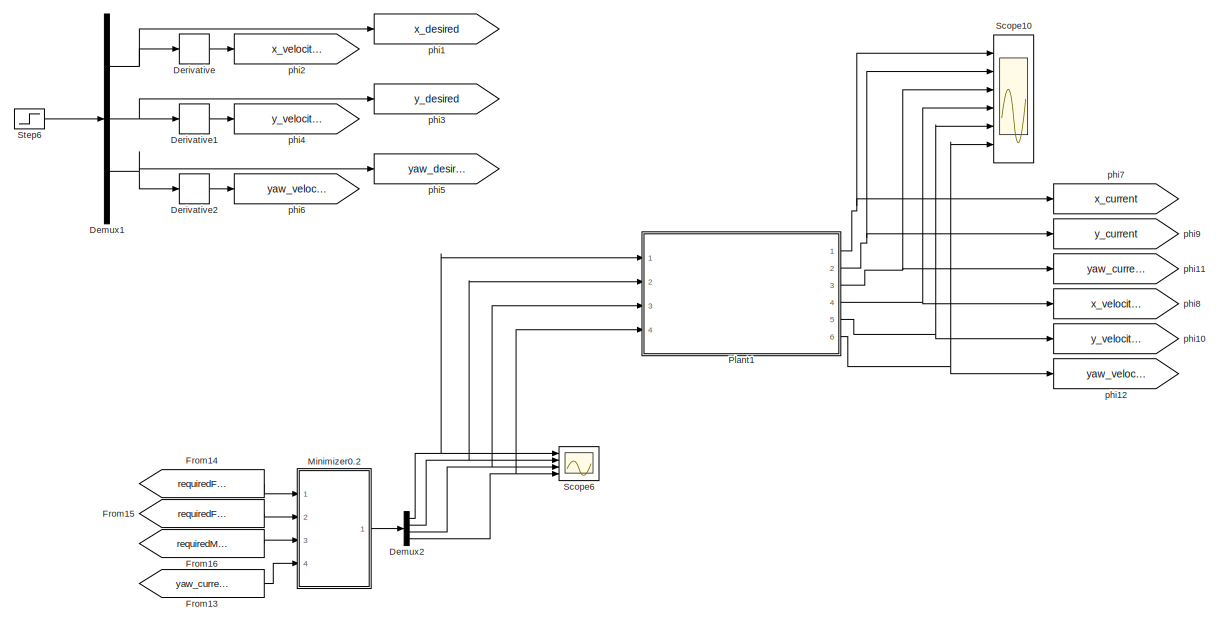
[diagram: root canvas - part 1/2, left side, full height]
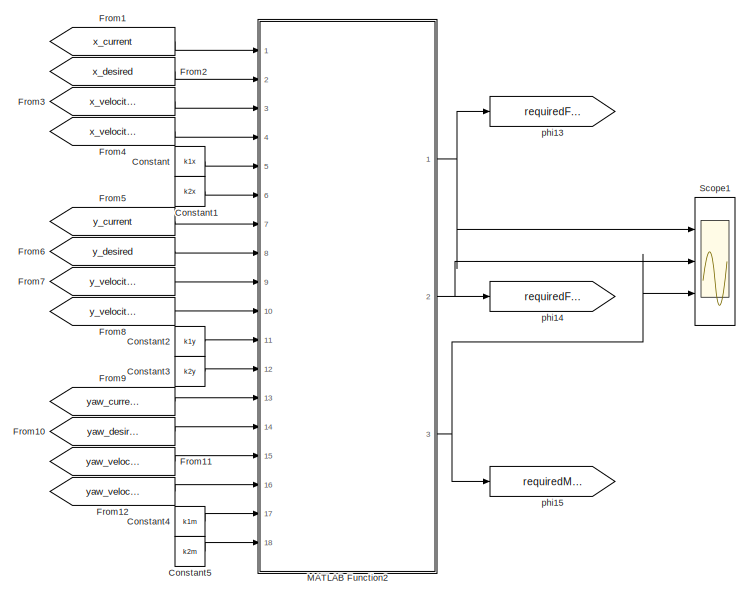
[diagram: root canvas - part 2/2, right side, full height]
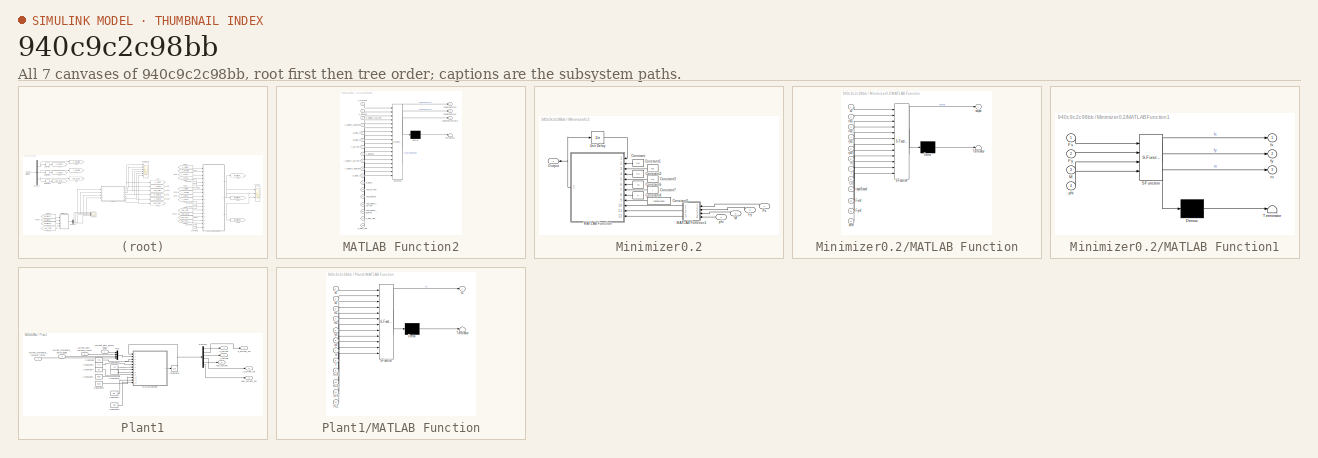
[diagram: thumbnail index - all 7 canvases of the model, root first then tree order]
MODEL slx_940c9c2c98bb
KIND model
BLOCK [Constant] Constant
  Value = k1x
BLOCK [Constant] Constant1
  Value = k2x
BLOCK [Constant] Constant2
  Value = k1y
BLOCK [Constant] Constant3
  Value = k2y
BLOCK [Constant] Constant4
  Value = k1m
BLOCK [Constant] Constant5
  Value = k2m
BLOCK [Demux] Demux1
  DisplayOption = bar
  Outputs = 3
  Ports = [1, 3]
BLOCK [Demux] Demux2
  DisplayOption = bar
  Ports = [1, 4]
BLOCK [Derivative] Derivative
BLOCK [Derivative] Derivative1
BLOCK [Derivative] Derivative2
BLOCK [From] From1
  GotoTag = x_current
BLOCK [From] From10
  GotoTag = yaw_desired
BLOCK [From] From11
  GotoTag = yaw_velocity_current
BLOCK [From] From12
  GotoTag = yaw_velocity_desired
BLOCK [From] From13
  GotoTag = yaw_current
BLOCK [From] From14
  GotoTag = requiredForceX
BLOCK [From] From15
  GotoTag = requiredForceY
BLOCK [From] From16
  GotoTag = requiredMomentZ
BLOCK [From] From2
  GotoTag = x_desired
BLOCK [From] From3
  GotoTag = x_velocity_current
BLOCK [From] From4
  GotoTag = x_velocity_desired
BLOCK [From] From5
  GotoTag = y_current
BLOCK [From] From6
  GotoTag = y_desired
BLOCK [From] From7
  GotoTag = y_velocity_current
BLOCK [From] From8
  GotoTag = y_velocity_desired
BLOCK [From] From9
  GotoTag = yaw_current
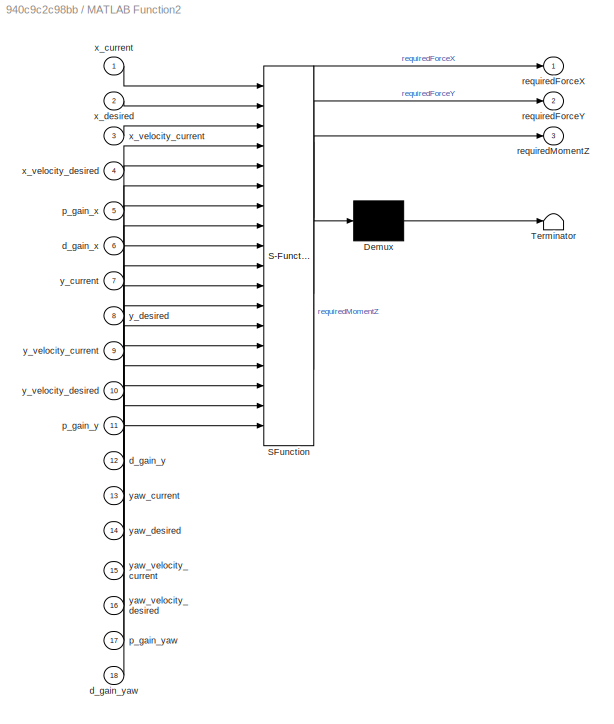
BLOCK [SubSystem] MATLAB Function2
  ErrorFcn = Stateflow.Translate.translate
  PermitHierarchicalResolution = ExplicitOnly
  Ports = [18, 3]
  RequestExecContextInheritance = off
  SFBlockType = MATLAB Function
  TreatAsAtomicUnit = on
BLOCK [Demux] MATLAB Function2/ Demux 
  Outputs = 1
  Ports = [1, 1]
BLOCK [S-Function] MATLAB Function2/ SFunction 
  EnableBusSupport = on
  FunctionName = sf_sfun
  PortCounts = [18 4]
  Ports = [18, 4]
  Tag = Stateflow S-Function systemTest 1
BLOCK [Terminator] MATLAB Function2/ Terminator 
BLOCK [Inport] MATLAB Function2/d_gain_x
  IconDisplay = Port number
  Port = 6
BLOCK [Inport] MATLAB Function2/d_gain_y
  IconDisplay = Port number
  Port = 12
BLOCK [Inport] MATLAB Function2/d_gain_yaw
  IconDisplay = Port number
  Port = 18
BLOCK [Inport] MATLAB Function2/p_gain_x
  IconDisplay = Port number
  Port = 5
BLOCK [Inport] MATLAB Function2/p_gain_y
  IconDisplay = Port number
  Port = 11
BLOCK [Inport] MATLAB Function2/p_gain_yaw
  IconDisplay = Port number
  Port = 17
BLOCK [Outport] MATLAB Function2/requiredForceX
  IconDisplay = Port number
BLOCK [Outport] MATLAB Function2/requiredForceY
  IconDisplay = Port number
  Port = 2
BLOCK [Outport] MATLAB Function2/requiredMomentZ
  IconDisplay = Port number
  Port = 3
BLOCK [Inport] MATLAB Function2/x_current
  IconDisplay = Port number
BLOCK [Inport] MATLAB Function2/x_desired
  IconDisplay = Port number
  Port = 2
BLOCK [Inport] MATLAB Function2/x_velocity_current
  IconDisplay = Port number
  Port = 3
BLOCK [Inport] MATLAB Function2/x_velocity_desired
  IconDisplay = Port number
  Port = 4
BLOCK [Inport] MATLAB Function2/y_current
  IconDisplay = Port number
  Port = 7
BLOCK [Inport] MATLAB Function2/y_desired
  IconDisplay = Port number
  Port = 8
BLOCK [Inport] MATLAB Function2/y_velocity_current
  IconDisplay = Port number
  Port = 9
BLOCK [Inport] MATLAB Function2/y_velocity_desired
  IconDisplay = Port number
  Port = 10
BLOCK [Inport] MATLAB Function2/yaw_current
  IconDisplay = Port number
  Port = 13
BLOCK [Inport] MATLAB Function2/yaw_desired
  IconDisplay = Port number
  Port = 14
BLOCK [Inport] MATLAB Function2/yaw_velocity_current
  IconDisplay = Port number
  Port = 15
BLOCK [Inport] MATLAB Function2/yaw_velocity_desired
  IconDisplay = Port number
  Port = 16
BLOCK [SubSystem] Minimizer0.2
  Ports = [4, 1]
  RequestExecContextInheritance = off
BLOCK [Constant] Minimizer0.2/Constant
  Value = rx1
BLOCK [Constant] Minimizer0.2/Constant1
  Value = rx2
BLOCK [Constant] Minimizer0.2/Constant2
  Value = ry1
BLOCK [Constant] Minimizer0.2/Constant3
  Value = ry2
BLOCK [Constant] Minimizer0.2/Constant4
  Value = K
BLOCK [Constant] Minimizer0.2/Constant5
  Value = inputBound
BLOCK [Constant] Minimizer0.2/Constant6
  Value = m
BLOCK [Constant] Minimizer0.2/Constant7
  Value = I
BLOCK [Inport] Minimizer0.2/Fx
  IconDisplay = Port number
BLOCK [Inport] Minimizer0.2/Fy
  IconDisplay = Port number
  Port = 2
BLOCK [Inport] Minimizer0.2/M
  IconDisplay = Port number
  Port = 3
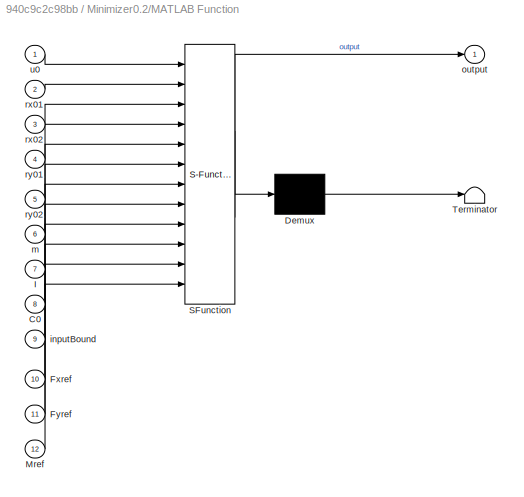
BLOCK [SubSystem] Minimizer0.2/MATLAB Function
  ErrorFcn = Stateflow.Translate.translate
  PermitHierarchicalResolution = ExplicitOnly
  Ports = [12, 1]
  RequestExecContextInheritance = off
  SFBlockType = MATLAB Function
  TreatAsAtomicUnit = on
BLOCK [Demux] Minimizer0.2/MATLAB Function/ Demux 
  Outputs = 1
  Ports = [1, 1]
BLOCK [S-Function] Minimizer0.2/MATLAB Function/ SFunction 
  EnableBusSupport = on
  FunctionName = sf_sfun
  PortCounts = [12 2]
  Ports = [12, 2]
  Tag = Stateflow S-Function systemTest 11
BLOCK [Terminator] Minimizer0.2/MATLAB Function/ Terminator 
BLOCK [Inport] Minimizer0.2/MATLAB Function/C0
  IconDisplay = Port number
  Port = 8
BLOCK [Inport] Minimizer0.2/MATLAB Function/Fxref
  IconDisplay = Port number
  Port = 10
BLOCK [Inport] Minimizer0.2/MATLAB Function/Fyref
  IconDisplay = Port number
  Port = 11
BLOCK [Inport] Minimizer0.2/MATLAB Function/I
  IconDisplay = Port number
  Port = 7
BLOCK [Inport] Minimizer0.2/MATLAB Function/Mref
  IconDisplay = Port number
  Port = 12
BLOCK [Inport] Minimizer0.2/MATLAB Function/inputBound
  IconDisplay = Port number
  Port = 9
BLOCK [Inport] Minimizer0.2/MATLAB Function/m
  IconDisplay = Port number
  Port = 6
BLOCK [Outport] Minimizer0.2/MATLAB Function/output
  IconDisplay = Port number
BLOCK [Inport] Minimizer0.2/MATLAB Function/rx01
  IconDisplay = Port number
  Port = 2
BLOCK [Inport] Minimizer0.2/MATLAB Function/rx02
  IconDisplay = Port number
  Port = 3
BLOCK [Inport] Minimizer0.2/MATLAB Function/ry01
  IconDisplay = Port number
  Port = 4
BLOCK [Inport] Minimizer0.2/MATLAB Function/ry02
  IconDisplay = Port number
  Port = 5
BLOCK [Inport] Minimizer0.2/MATLAB Function/u0
  IconDisplay = Port number
BLOCK [SubSystem] Minimizer0.2/MATLAB Function1
  ErrorFcn = Stateflow.Translate.translate
  PermitHierarchicalResolution = ExplicitOnly
  Ports = [4, 3]
  RequestExecContextInheritance = off
  SFBlockType = MATLAB Function
  TreatAsAtomicUnit = on
BLOCK [Demux] Minimizer0.2/MATLAB Function1/ Demux 
  Outputs = 1
  Ports = [1, 1]
BLOCK [S-Function] Minimizer0.2/MATLAB Function1/ SFunction 
  EnableBusSupport = on
  FunctionName = sf_sfun
  PortCounts = [4 4]
  Ports = [4, 4]
  Tag = Stateflow S-Function systemTest 12
BLOCK [Terminator] Minimizer0.2/MATLAB Function1/ Terminator 
BLOCK [Inport] Minimizer0.2/MATLAB Function1/Fx
  IconDisplay = Port number
BLOCK [Inport] Minimizer0.2/MATLAB Function1/Fy
  IconDisplay = Port number
  Port = 2
BLOCK [Inport] Minimizer0.2/MATLAB Function1/M
  IconDisplay = Port number
  Port = 3
BLOCK [Outport] Minimizer0.2/MATLAB Function1/fx
  IconDisplay = Port number
BLOCK [Outport] Minimizer0.2/MATLAB Function1/fy
  IconDisplay = Port number
  Port = 2
BLOCK [Outport] Minimizer0.2/MATLAB Function1/m
  IconDisplay = Port number
  Port = 3
BLOCK [Inport] Minimizer0.2/MATLAB Function1/phi
  IconDisplay = Port number
  Port = 4
BLOCK [Outport] Minimizer0.2/Output
  IconDisplay = Port number
BLOCK [UnitDelay] Minimizer0.2/Unit Delay
  InitialCondition = [0;0;0;0]
  InputProcessing = Elements as channels (sample based)
  SampleTime = -1
BLOCK [Inport] Minimizer0.2/phi
  IconDisplay = Port number
  Port = 4
BLOCK [SubSystem] Plant1
  Ports = [4, 6]
  RequestExecContextInheritance = off
BLOCK [Constant] Plant1/Constant
  Value = rx1
BLOCK [Constant] Plant1/Constant1
  Value = friX1
BLOCK [Constant] Plant1/Constant2
  Value = ry1
BLOCK [Constant] Plant1/Constant3
  Value = ry2
BLOCK [Constant] Plant1/Constant4
  Value = M
BLOCK [Constant] Plant1/Constant5
  Value = I
BLOCK [Constant] Plant1/Constant7
  Value = friY
BLOCK [Constant] Plant1/Constant8
  Value = friX2
BLOCK [Constant] Plant1/Constant9
  Value = friZ
BLOCK [Demux] Plant1/Demux1
  DisplayOption = bar
  Outputs = 6
  Ports = [1, 6]
BLOCK [Integrator] Plant1/Integrator
  InitialCondition = [0 0 0 0 0 0]
  Ports = [1, 1]
BLOCK [SubSystem] Plant1/MATLAB Function
  ErrorFcn = Stateflow.Translate.translate
  PermitHierarchicalResolution = ExplicitOnly
  Ports = [12, 1]
  RequestExecContextInheritance = off
  SFBlockType = MATLAB Function
  TreatAsAtomicUnit = on
BLOCK [Demux] Plant1/MATLAB Function/ Demux 
  Outputs = 1
  Ports = [1, 1]
BLOCK [S-Function] Plant1/MATLAB Function/ SFunction 
  EnableBusSupport = on
  FunctionName = sf_sfun
  PortCounts = [12 2]
  Ports = [12, 2]
  Tag = Stateflow S-Function systemTest 5
BLOCK [Terminator] Plant1/MATLAB Function/ Terminator 
BLOCK [Inport] Plant1/MATLAB Function/I
  IconDisplay = Port number
  Port = 8
BLOCK [Inport] Plant1/MATLAB Function/friX1
  IconDisplay = Port number
  Port = 9
BLOCK [Inport] Plant1/MATLAB Function/friX2
  IconDisplay = Port number
  Port = 10
BLOCK [Inport] Plant1/MATLAB Function/friY
  IconDisplay = Port number
  Port = 11
BLOCK [Inport] Plant1/MATLAB Function/friZ
  IconDisplay = Port number
  Port = 12
BLOCK [Inport] Plant1/MATLAB Function/m
  IconDisplay = Port number
  Port = 7
BLOCK [Inport] Plant1/MATLAB Function/rx1
  IconDisplay = Port number
  Port = 3
BLOCK [Inport] Plant1/MATLAB Function/rx2
  IconDisplay = Port number
  Port = 4
BLOCK [Inport] Plant1/MATLAB Function/ry1
  IconDisplay = Port number
  Port = 5
BLOCK [Inport] Plant1/MATLAB Function/ry2
  IconDisplay = Port number
  Port = 6
BLOCK [Inport] Plant1/MATLAB Function/u0
  IconDisplay = Port number
  Port = 2
BLOCK [Inport] Plant1/MATLAB Function/v0
  IconDisplay = Port number
BLOCK [Outport] Plant1/MATLAB Function/v1
  IconDisplay = Port number
BLOCK [Mux] Plant1/Mux
  DisplayOption = bar
  Ports = [4, 1]
BLOCK [Inport] Plant1/current_port_servo_angle
  IconDisplay = Port number
BLOCK [Inport] Plant1/current_port_thruster_force
  IconDisplay = Port number
  Port = 2
BLOCK [Inport] Plant1/current_starboard_servo_angle
  IconDisplay = Port number
  Port = 3
BLOCK [Inport] Plant1/current_starboard_thruster_force
  IconDisplay = Port number
  Port = 4
BLOCK [Outport] Plant1/x_current
  IconDisplay = Port number
BLOCK [Outport] Plant1/x_current_vel
  IconDisplay = Port number
  Port = 4
BLOCK [Outport] Plant1/y_current
  IconDisplay = Port number
  Port = 2
BLOCK [Outport] Plant1/y_current_vel
  IconDisplay = Port number
  Port = 5
BLOCK [Outport] Plant1/yaw_current
  IconDisplay = Port number
  Port = 3
BLOCK [Outport] Plant1/yaw_current_vel
  IconDisplay = Port number
  Port = 6
BLOCK [Scope] Scope1
  DataFormat = StructureWithTime
  Floating = off
  LimitDataPoints = off
  NumInputPorts = 3
  Ports = [3]
  SampleTime = 0
  ShowLegends = off
  YMax = 0~940~-155
  YMin = -3~905~-185
  ZoomMode = yonly
BLOCK [Scope] Scope10
  DataFormat = StructureWithTime
  Floating = off
  LimitDataPoints = off
  NumInputPorts = 6
  Ports = [6]
  SampleTime = 0
  SaveName = ScopeData9
  ShowLegends = off
  YMax = 1.87~5.97~12.13~0.03305~0.08155~-0.1103
  YMin = 1.83~5.87~12~0.03265~0.0811~-0.1116
  ZoomMode = yonly
BLOCK [Scope] Scope6
  DataFormat = StructureWithTime
  Floating = off
  LimitDataPoints = off
  NumInputPorts = 4
  Ports = [4]
  SampleTime = 0
  SaveName = ScopeData5
  ShowLegends = off
  YMax = 1~-23~45.5556~32.5
  YMin = -1~-23~45.5556~25
  ZoomMode = yonly
BLOCK [Step] Step6
  After = [0;10;0]
  Before = [0;0;0]
  SampleTime = 0
BLOCK [Goto] phi1
  GotoTag = x_desired
BLOCK [Goto] phi10
  GotoTag = y_velocity_current
BLOCK [Goto] phi11
  GotoTag = yaw_current
BLOCK [Goto] phi12
  GotoTag = yaw_velocity_current
BLOCK [Goto] phi13
  GotoTag = requiredForceX
BLOCK [Goto] phi14
  GotoTag = requiredForceY
BLOCK [Goto] phi15
  GotoTag = requiredMomentZ
BLOCK [Goto] phi2
  GotoTag = x_velocity_desired
BLOCK [Goto] phi3
  GotoTag = y_desired
BLOCK [Goto] phi4
  GotoTag = y_velocity_desired
BLOCK [Goto] phi5
  GotoTag = yaw_desired
BLOCK [Goto] phi6
  GotoTag = yaw_velocity_desired
BLOCK [Goto] phi7
  GotoTag = x_current
BLOCK [Goto] phi8
  GotoTag = x_velocity_current
BLOCK [Goto] phi9
  GotoTag = y_current
LINE Constant1:1 -> MATLAB Function2:6
LINE Constant2:1 -> MATLAB Function2:11
LINE Constant3:1 -> MATLAB Function2:12
LINE Constant4:1 -> MATLAB Function2:17
LINE Constant5:1 -> MATLAB Function2:18
LINE Constant:1 -> MATLAB Function2:5
NET Demux1:1 -> Derivative:1, phi1:1
NET Demux1:2 -> Derivative1:1, phi3:1
NET Demux1:3 -> Derivative2:1, phi5:1
NET Demux2:1 -> Plant1:1, Scope6:1
NET Demux2:2 -> Plant1:2, Scope6:2
NET Demux2:3 -> Plant1:3, Scope6:3
NET Demux2:4 -> Plant1:4, Scope6:4
LINE Derivative1:1 -> phi4:1
LINE Derivative2:1 -> phi6:1
LINE Derivative:1 -> phi2:1
LINE From10:1 -> MATLAB Function2:14
LINE From11:1 -> MATLAB Function2:15
LINE From12:1 -> MATLAB Function2:16
LINE From13:1 -> Minimizer0.2:4
LINE From14:1 -> Minimizer0.2:1
LINE From15:1 -> Minimizer0.2:2
LINE From16:1 -> Minimizer0.2:3
LINE From1:1 -> MATLAB Function2:1
LINE From2:1 -> MATLAB Function2:2
LINE From3:1 -> MATLAB Function2:3
LINE From4:1 -> MATLAB Function2:4
LINE From5:1 -> MATLAB Function2:7
LINE From6:1 -> MATLAB Function2:8
LINE From7:1 -> MATLAB Function2:9
LINE From8:1 -> MATLAB Function2:10
LINE From9:1 -> MATLAB Function2:13
NET MATLAB Function2:1 -> Scope1:1, phi13:1
NET MATLAB Function2:2 -> Scope1:2, phi14:1
NET MATLAB Function2:3 -> Scope1:3, phi15:1
LINE Minimizer0.2/Constant1:1 -> Minimizer0.2/MATLAB Function:3
LINE Minimizer0.2/Constant2:1 -> Minimizer0.2/MATLAB Function:4
LINE Minimizer0.2/Constant3:1 -> Minimizer0.2/MATLAB Function:5
LINE Minimizer0.2/Constant4:1 -> Minimizer0.2/MATLAB Function:8
LINE Minimizer0.2/Constant5:1 -> Minimizer0.2/MATLAB Function:9
LINE Minimizer0.2/Constant6:1 -> Minimizer0.2/MATLAB Function:6
LINE Minimizer0.2/Constant7:1 -> Minimizer0.2/MATLAB Function:7
LINE Minimizer0.2/Constant:1 -> Minimizer0.2/MATLAB Function:2
LINE Minimizer0.2/Fx:1 -> Minimizer0.2/MATLAB Function1:1
LINE Minimizer0.2/Fy:1 -> Minimizer0.2/MATLAB Function1:2
LINE Minimizer0.2/M:1 -> Minimizer0.2/MATLAB Function1:3
LINE Minimizer0.2/MATLAB Function1:1 -> Minimizer0.2/MATLAB Function:10
LINE Minimizer0.2/MATLAB Function1:2 -> Minimizer0.2/MATLAB Function:11
LINE Minimizer0.2/MATLAB Function1:3 -> Minimizer0.2/MATLAB Function:12
NET Minimizer0.2/MATLAB Function:1 -> Minimizer0.2/Output:1, Minimizer0.2/Unit Delay:1
LINE Minimizer0.2/Unit Delay:1 -> Minimizer0.2/MATLAB Function:1
LINE Minimizer0.2/phi:1 -> Minimizer0.2/MATLAB Function1:4
LINE Minimizer0.2:1 -> Demux2:1
LINE Plant1/Constant1:1 -> Plant1/MATLAB Function:9
LINE Plant1/Constant2:1 -> Plant1/MATLAB Function:5
LINE Plant1/Constant3:1 -> Plant1/MATLAB Function:6
LINE Plant1/Constant4:1 -> Plant1/MATLAB Function:7
LINE Plant1/Constant5:1 -> Plant1/MATLAB Function:8
LINE Plant1/Constant7:1 -> Plant1/MATLAB Function:11
LINE Plant1/Constant8:1 -> Plant1/MATLAB Function:10
LINE Plant1/Constant9:1 -> Plant1/MATLAB Function:12
NET Plant1/Constant:1 -> Plant1/MATLAB Function:3, Plant1/MATLAB Function:4
LINE Plant1/Demux1:1 -> Plant1/x_current:1
LINE Plant1/Demux1:2 -> Plant1/x_current_vel:1
LINE Plant1/Demux1:3 -> Plant1/y_current:1
LINE Plant1/Demux1:4 -> Plant1/y_current_vel:1
LINE Plant1/Demux1:5 -> Plant1/yaw_current:1
LINE Plant1/Demux1:6 -> Plant1/yaw_current_vel:1
NET Plant1/Integrator:1 -> Plant1/Demux1:1, Plant1/MATLAB Function:1
LINE Plant1/MATLAB Function:1 -> Plant1/Integrator:1
LINE Plant1/Mux:1 -> Plant1/MATLAB Function:2
LINE Plant1/current_port_servo_angle:1 -> Plant1/Mux:1
LINE Plant1/current_port_thruster_force:1 -> Plant1/Mux:2
LINE Plant1/current_starboard_servo_angle:1 -> Plant1/Mux:3
LINE Plant1/current_starboard_thruster_force:1 -> Plant1/Mux:4
NET Plant1:1 -> Scope10:1, phi7:1
NET Plant1:2 -> Scope10:2, phi9:1
NET Plant1:3 -> Scope10:3, phi11:1
NET Plant1:4 -> Scope10:4, phi8:1
NET Plant1:5 -> Scope10:5, phi10:1
NET Plant1:6 -> Scope10:6, phi12:1
LINE Step6:1 -> Demux1:1
note: NET lines group one-source signal fan-out (src -> all destinations, sorted); 1:1 wires keep LINE
